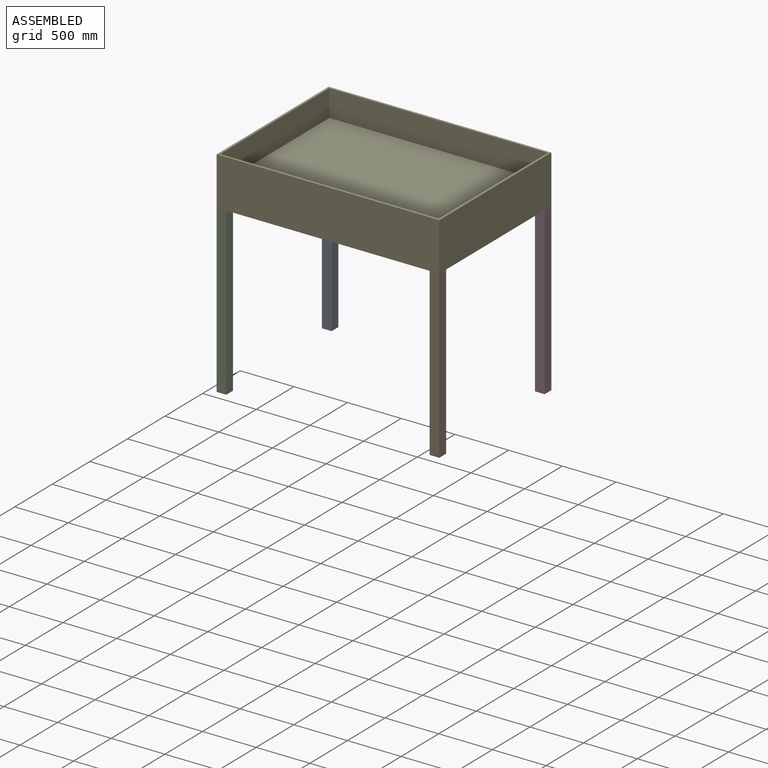
[diagram: assembled view]
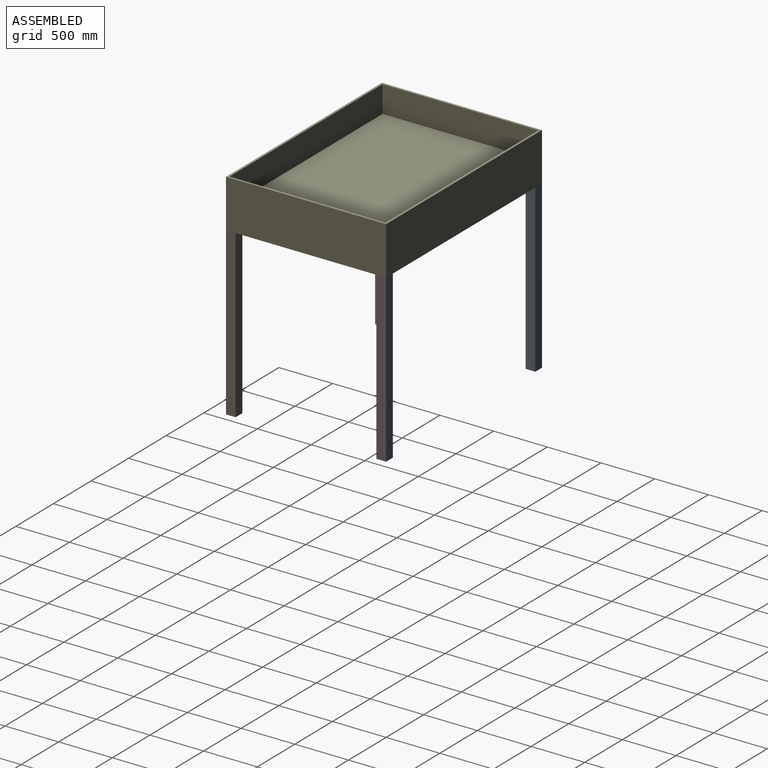
[diagram: assembled view, second angle]
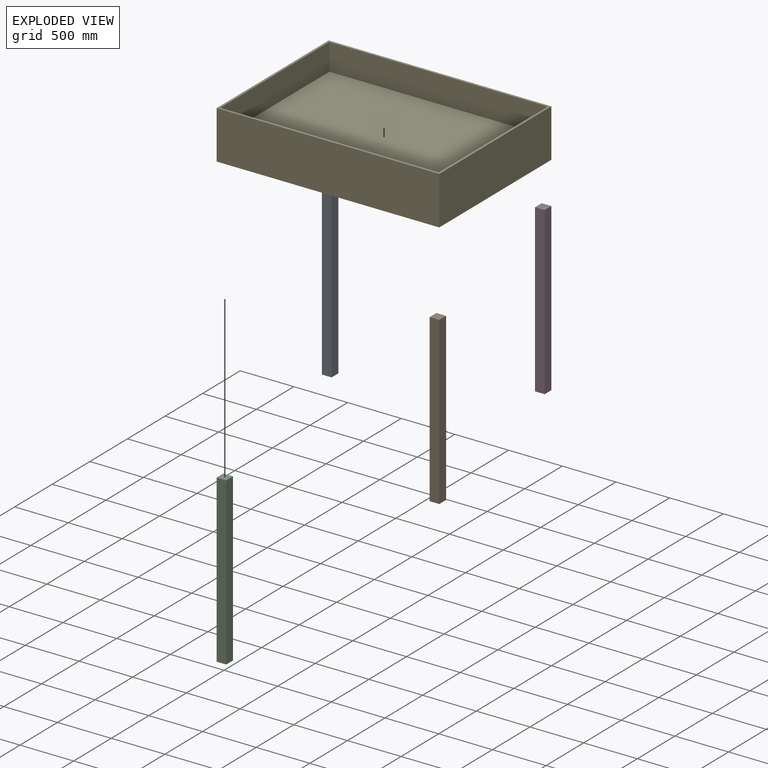
[diagram: exploded view]
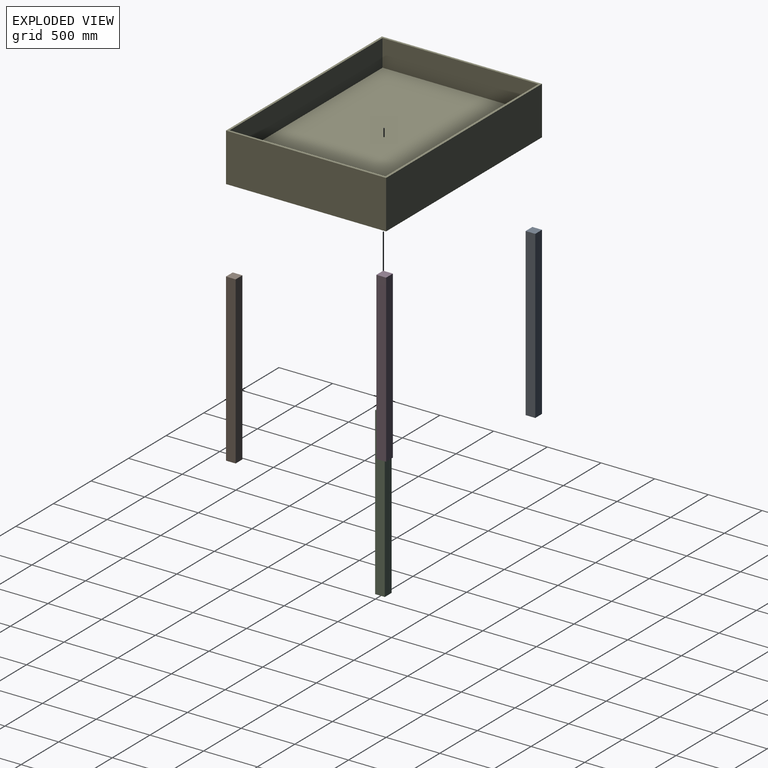
[diagram: exploded view, second angle]
ASSEMBLY  parts=5 mates=4
PART A: 6 faces, bbox 90x90x1550 mm
  f0: plane 1550x90mm, normal (1,0,0), area 139500mm2, adj f1,f3,f4,f5
  f1: plane 1550x90mm, normal (0,1,0), area 139500mm2, adj f0,f2,f4,f5
  f2: plane 1550x90mm, normal (-1,0,0), area 139500mm2, adj f1,f3,f4,f5
  f3: plane 1550x90mm, normal (0,-1,0), area 139500mm2, adj f0,f2,f4,f5
  f4: plane 90x90mm, normal (0,0,1), area 8100mm2, adj f0,f1,f2,f3
  f5: plane 90x90mm, normal (0,0,-1), area 8100mm2, adj f0,f1,f2,f3
PART B: 6 faces, bbox 90x90x1550 mm
  f0: plane 1550x90mm, normal (1,0,0), area 139500mm2, adj f1,f3,f4,f5
  f1: plane 1550x90mm, normal (0,1,0), area 139500mm2, adj f0,f2,f4,f5
  f2: plane 1550x90mm, normal (-1,0,0), area 139500mm2, adj f1,f3,f4,f5
  f3: plane 1550x90mm, normal (0,-1,0), area 139500mm2, adj f0,f2,f4,f5
  f4: plane 90x90mm, normal (0,0,1), area 8100mm2, adj f0,f1,f2,f3
  f5: plane 90x90mm, normal (0,0,-1), area 8100mm2, adj f0,f1,f2,f3
PART C: 6 faces, bbox 90x90x1550 mm
  f0: plane 1550x90mm, normal (1,0,0), area 139500mm2, adj f1,f3,f4,f5
  f1: plane 1550x90mm, normal (0,1,0), area 139500mm2, adj f0,f2,f4,f5
  f2: plane 1550x90mm, normal (-1,0,0), area 139500mm2, adj f1,f3,f4,f5
  f3: plane 1550x90mm, normal (0,-1,0), area 139500mm2, adj f0,f2,f4,f5
  f4: plane 90x90mm, normal (0,0,1), area 8100mm2, adj f0,f1,f2,f3
  f5: plane 90x90mm, normal (0,0,-1), area 8100mm2, adj f0,f1,f2,f3
PART D: 6 faces, bbox 90x90x1550 mm
  f0: plane 1550x90mm, normal (1,0,0), area 139500mm2, adj f1,f3,f4,f5
  f1: plane 1550x90mm, normal (0,1,0), area 139500mm2, adj f0,f2,f4,f5
  f2: plane 1550x90mm, normal (-1,0,0), area 139500mm2, adj f1,f3,f4,f5
  f3: plane 1550x90mm, normal (0,-1,0), area 139500mm2, adj f0,f2,f4,f5
  f4: plane 90x90mm, normal (0,0,1), area 8100mm2, adj f0,f1,f2,f3
  f5: plane 90x90mm, normal (0,0,-1), area 8100mm2, adj f0,f1,f2,f3
PART E: 11 faces, bbox 2074.7x1491.6x450 mm
  f0: plane 2074.66x450mm, normal (0,-1,0), area 933598mm2, adj f1,f3,f4,f9
  f1: plane 1491.59x450mm, normal (1,0,0), area 671217.4mm2, adj f0,f2,f4,f9
  f2: plane 2074.66x450mm, normal (0,1,0), area 933598mm2, adj f1,f3,f4,f9
  f3: plane 1491.59x450mm, normal (-1,0,0), area 671217.4mm2, adj f0,f2,f4,f9
  f4: plane 2074.66x1491.59mm, normal (0,0,-1), area 3094554.4mm2, adj f0,f1,f2,f3
  f5: plane 1451.59x250mm, normal (-1,0,0), area 362898.6mm2, adj f6,f8,f9,f10
  f6: plane 2034.66x250mm, normal (0,1,0), area 508665.6mm2, adj f5,f7,f9,f10
  f7: plane 1451.59x250mm, normal (1,0,0), area 362898.6mm2, adj f6,f8,f9,f10
  f8: plane 2034.66x250mm, normal (0,-1,0), area 508665.6mm2, adj f5,f7,f9,f10
  f9: plane 2074.66x1491.59mm, normal (0,0,1), area 141050.3mm2, adj f0,f1,f2,f3,f5,f6,f7,f8
  f10: plane 2034.66x1451.59mm, normal (0,0,1), area 2953504.1mm2, adj f5,f6,f7,f8
PLACE A t=(5.34,-11.59,0)mm
PLACE B t=(5.34,-11.59,0)mm
PLACE C t=(5.34,-11.59,0)mm
PLACE D at identity
PLACE E t=(5.34,-11.59,0)mm
MATE fastened E.f4 <-> A.f4  axis (0,0,-1) through (-2074.66,0,1550)mm
MATE fastened E.f4 <-> D.f4  axis (0,0,-1) through (0,0,1550)mm
MATE fastened E.f4 <-> C.f4  axis (0,0,-1) through (-2074.66,-1491.59,1550)mm
MATE fastened E.f4 <-> B.f4  axis (0,0,-1) through (0,-1491.59,1550)mm
